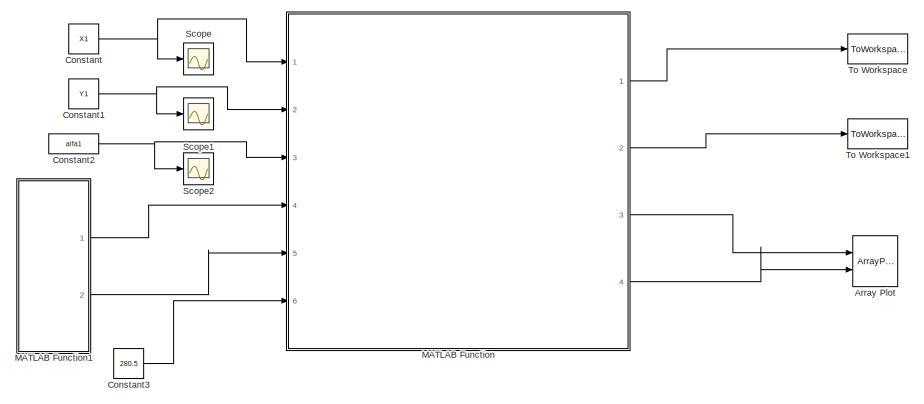
[diagram: root canvas - part 1/2, full width, top band]
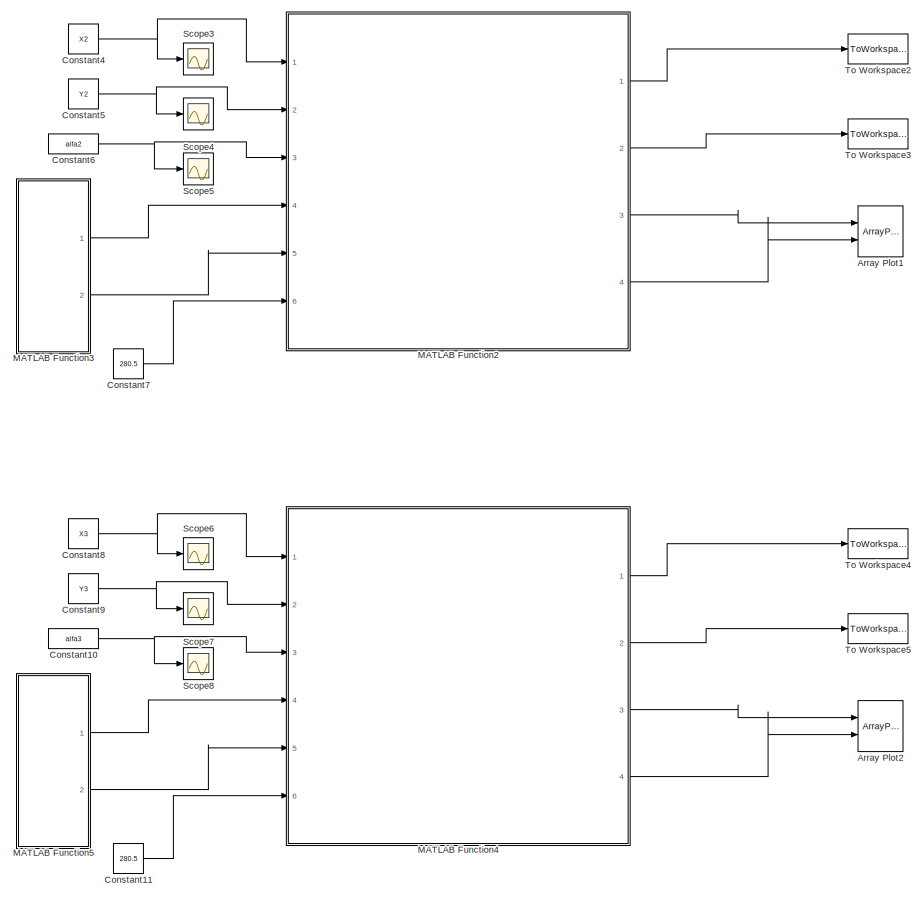
[diagram: root canvas - part 2/2, full width, bottom band]
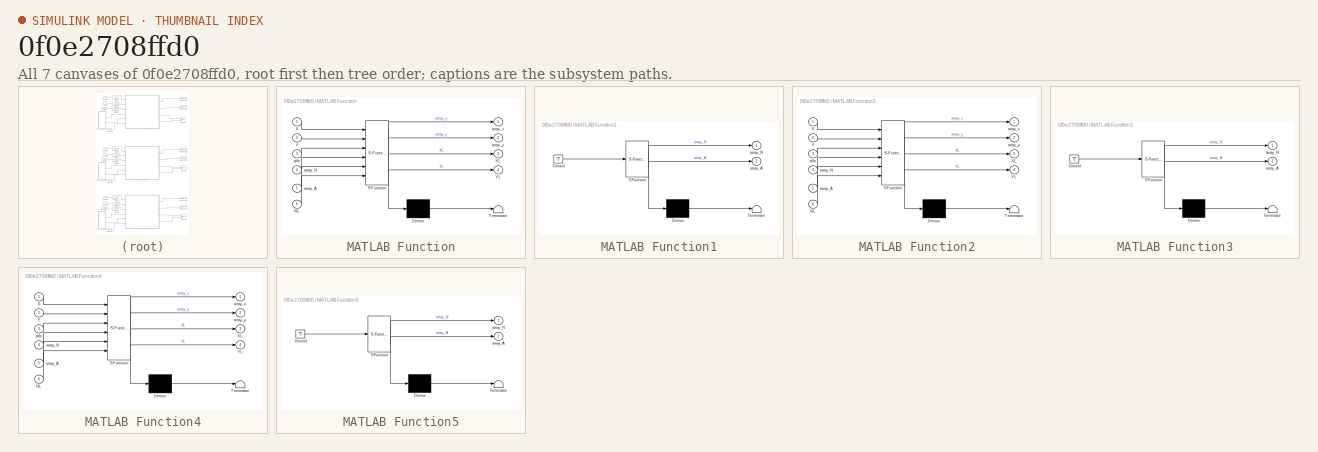
[diagram: thumbnail index - all 7 canvases of the model, root first then tree order]
MODEL slx_0f0e2708ffd0
KIND model
CONFIG AbsTol = auto
CONFIG EnableMultiTasking = off
CONFIG FixedStep = auto
CONFIG MaxStep = auto
CONFIG MinStep = auto
CONFIG RelTol = 1e-3
CONFIG SampleTimeConstraint = Unconstrained
CONFIG SolverName = VariableStepAuto
CONFIG StartTime = 0.0
CONFIG StopTime = 1
BLOCK [ArrayPlot] Array Plot
  DefaultConfigurationName = dsp.scopes.ArrayPlotBlockSpecification
  GraphicalSettings = {"Style":{"BackgroundColor":[0.1568627450980392,0.1568627450980392,0.1568627450980392],"AxesColor":[0,0,0],"LabelsColor":[0.6862745098039216,0.6862745098039216,0.6862745098039216],"LineStyle":["-","-"],"LineColor":[[1,1,0.06666666666666667],[0.07450980392156863,0.6235294117647059,1]],"LineWidth":[1.5,1.5],"Marker":["o","o"],"FontSize":"small"}}  <repeated x3 — deduplicated; at blocks: Array Plot, Array Plot1, Array Plot2>
  NumInputPorts = 2
  Ports = [2]
  ShowLegend = on
  WindowPosition = [1.000000,49.000000,1536.000000,793.000000,]
  YLimits = [1923.5505206074731,2473.1363836381797]
BLOCK [ArrayPlot] Array Plot1
  DefaultConfigurationName = dsp.scopes.ArrayPlotBlockSpecification
  NumInputPorts = 2
  Ports = [2]
  ShowLegend = on
  WindowPosition = [1.000000,49.000000,1536.000000,793.000000,]
  YLimits = [5653.261151340503,7268.478623152074]
BLOCK [ArrayPlot] Array Plot2
  DefaultConfigurationName = dsp.scopes.ArrayPlotBlockSpecification
  NumInputPorts = 2
  Ports = [2]
  ShowLegend = on
  WindowPosition = [1.000000,49.000000,1536.000000,793.000000,]
  YLimits = [5653.261151340503,7268.478623152074]
BLOCK [Constant] Constant
  LockScale = on
  OutDataTypeStr = double
  Value = X1
BLOCK [Constant] Constant1
  LockScale = on
  OutDataTypeStr = double
  Value = Y1
BLOCK [Constant] Constant10
  LockScale = on
  OutDataTypeStr = double
  Value = alfa3
BLOCK [Constant] Constant11
  Value = 280.5
BLOCK [Constant] Constant2
  LockScale = on
  OutDataTypeStr = double
  Value = alfa1
BLOCK [Constant] Constant3
  Value = 280.5
BLOCK [Constant] Constant4
  LockScale = on
  OutDataTypeStr = double
  Value = X2
BLOCK [Constant] Constant5
  LockScale = on
  OutDataTypeStr = double
  Value = Y2
BLOCK [Constant] Constant6
  LockScale = on
  OutDataTypeStr = double
  Value = alfa2
BLOCK [Constant] Constant7
  Value = 280.5
BLOCK [Constant] Constant8
  LockScale = on
  OutDataTypeStr = double
  Value = X3
BLOCK [Constant] Constant9
  LockScale = on
  OutDataTypeStr = double
  Value = Y3
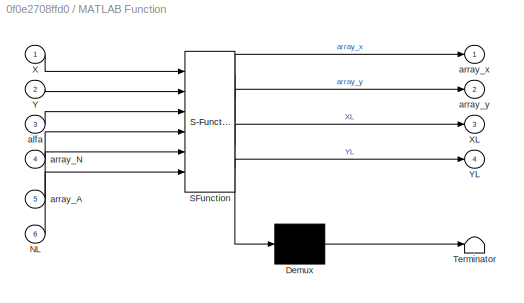
BLOCK [SubSystem] MATLAB Function
  ErrorFcn = Stateflow.Translate.translate
  PermitHierarchicalResolution = ExplicitOnly
  Ports = [6, 4]
  RequestExecContextInheritance = off
  SFBlockType = MATLAB Function
  TreatAsAtomicUnit = on
BLOCK [Demux] MATLAB Function/ Demux 
  Outputs = 1
  Ports = [1, 1]
BLOCK [S-Function] MATLAB Function/ SFunction 
  EnableBusSupport = on
  FunctionName = sf_sfun
  PortCounts = [6 5]
  Ports = [6, 5]
  SFcnIsStateOwnerBlock = off
  SFunctionDeploymentMode = off
  Tag = Stateflow S-Function 2
BLOCK [Terminator] MATLAB Function/ Terminator 
BLOCK [Inport] MATLAB Function/NL
  Port = 6
BLOCK [Inport] MATLAB Function/X
BLOCK [Outport] MATLAB Function/XL
  Port = 3
  VectorParamsAs1DForOutWhenUnconnected = off
BLOCK [Inport] MATLAB Function/Y
  Port = 2
BLOCK [Outport] MATLAB Function/YL
  Port = 4
  VectorParamsAs1DForOutWhenUnconnected = off
BLOCK [Inport] MATLAB Function/alfa
  Port = 3
BLOCK [Inport] MATLAB Function/array_A
  Port = 5
BLOCK [Inport] MATLAB Function/array_N
  Port = 4
BLOCK [Outport] MATLAB Function/array_x
  VectorParamsAs1DForOutWhenUnconnected = off
BLOCK [Outport] MATLAB Function/array_y
  Port = 2
  VectorParamsAs1DForOutWhenUnconnected = off
BLOCK [SubSystem] MATLAB Function1
  ErrorFcn = Stateflow.Translate.translate
  PermitHierarchicalResolution = ExplicitOnly
  Ports = [0, 2]
  RequestExecContextInheritance = off
  SFBlockType = MATLAB Function
  TreatAsAtomicUnit = on
BLOCK [Demux] MATLAB Function1/ Demux 
  Outputs = 1
  Ports = [1, 1]
BLOCK [Ground] MATLAB Function1/ Ground 
BLOCK [S-Function] MATLAB Function1/ SFunction 
  EnableBusSupport = on
  FunctionName = sf_sfun
  PortCounts = [1 3]
  Ports = [1, 3]
  SFcnIsStateOwnerBlock = off
  SFunctionDeploymentMode = off
  Tag = Stateflow S-Function 1
BLOCK [Terminator] MATLAB Function1/ Terminator 
BLOCK [Outport] MATLAB Function1/array_A
  Port = 2
  VectorParamsAs1DForOutWhenUnconnected = off
BLOCK [Outport] MATLAB Function1/array_N
  VectorParamsAs1DForOutWhenUnconnected = off
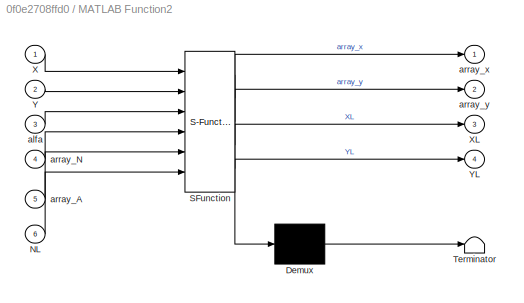
BLOCK [SubSystem] MATLAB Function2
  ErrorFcn = Stateflow.Translate.translate
  PermitHierarchicalResolution = ExplicitOnly
  Ports = [6, 4]
  RequestExecContextInheritance = off
  SFBlockType = MATLAB Function
  TreatAsAtomicUnit = on
BLOCK [Demux] MATLAB Function2/ Demux 
  Outputs = 1
  Ports = [1, 1]
BLOCK [S-Function] MATLAB Function2/ SFunction 
  EnableBusSupport = on
  FunctionName = sf_sfun
  PortCounts = [6 5]
  Ports = [6, 5]
  SFcnIsStateOwnerBlock = off
  SFunctionDeploymentMode = off
  Tag = Stateflow S-Function 3
BLOCK [Terminator] MATLAB Function2/ Terminator 
BLOCK [Inport] MATLAB Function2/NL
  Port = 6
BLOCK [Inport] MATLAB Function2/X
BLOCK [Outport] MATLAB Function2/XL
  Port = 3
  VectorParamsAs1DForOutWhenUnconnected = off
BLOCK [Inport] MATLAB Function2/Y
  Port = 2
BLOCK [Outport] MATLAB Function2/YL
  Port = 4
  VectorParamsAs1DForOutWhenUnconnected = off
BLOCK [Inport] MATLAB Function2/alfa
  Port = 3
BLOCK [Inport] MATLAB Function2/array_A
  Port = 5
BLOCK [Inport] MATLAB Function2/array_N
  Port = 4
BLOCK [Outport] MATLAB Function2/array_x
  VectorParamsAs1DForOutWhenUnconnected = off
BLOCK [Outport] MATLAB Function2/array_y
  Port = 2
  VectorParamsAs1DForOutWhenUnconnected = off
BLOCK [SubSystem] MATLAB Function3
  ErrorFcn = Stateflow.Translate.translate
  PermitHierarchicalResolution = ExplicitOnly
  Ports = [0, 2]
  RequestExecContextInheritance = off
  SFBlockType = MATLAB Function
  TreatAsAtomicUnit = on
BLOCK [Demux] MATLAB Function3/ Demux 
  Outputs = 1
  Ports = [1, 1]
BLOCK [Ground] MATLAB Function3/ Ground 
BLOCK [S-Function] MATLAB Function3/ SFunction 
  EnableBusSupport = on
  FunctionName = sf_sfun
  PortCounts = [1 3]
  Ports = [1, 3]
  SFcnIsStateOwnerBlock = off
  SFunctionDeploymentMode = off
  Tag = Stateflow S-Function 4
BLOCK [Terminator] MATLAB Function3/ Terminator 
BLOCK [Outport] MATLAB Function3/array_A
  Port = 2
  VectorParamsAs1DForOutWhenUnconnected = off
BLOCK [Outport] MATLAB Function3/array_N
  VectorParamsAs1DForOutWhenUnconnected = off
BLOCK [SubSystem] MATLAB Function4
  ErrorFcn = Stateflow.Translate.translate
  PermitHierarchicalResolution = ExplicitOnly
  Ports = [6, 4]
  RequestExecContextInheritance = off
  SFBlockType = MATLAB Function
  TreatAsAtomicUnit = on
BLOCK [Demux] MATLAB Function4/ Demux 
  Outputs = 1
  Ports = [1, 1]
BLOCK [S-Function] MATLAB Function4/ SFunction 
  EnableBusSupport = on
  FunctionName = sf_sfun
  PortCounts = [6 5]
  Ports = [6, 5]
  SFcnIsStateOwnerBlock = off
  SFunctionDeploymentMode = off
  Tag = Stateflow S-Function 5
BLOCK [Terminator] MATLAB Function4/ Terminator 
BLOCK [Inport] MATLAB Function4/NL
  Port = 6
BLOCK [Inport] MATLAB Function4/X
BLOCK [Outport] MATLAB Function4/XL
  Port = 3
  VectorParamsAs1DForOutWhenUnconnected = off
BLOCK [Inport] MATLAB Function4/Y
  Port = 2
BLOCK [Outport] MATLAB Function4/YL
  Port = 4
  VectorParamsAs1DForOutWhenUnconnected = off
BLOCK [Inport] MATLAB Function4/alfa
  Port = 3
BLOCK [Inport] MATLAB Function4/array_A
  Port = 5
BLOCK [Inport] MATLAB Function4/array_N
  Port = 4
BLOCK [Outport] MATLAB Function4/array_x
  VectorParamsAs1DForOutWhenUnconnected = off
BLOCK [Outport] MATLAB Function4/array_y
  Port = 2
  VectorParamsAs1DForOutWhenUnconnected = off
BLOCK [SubSystem] MATLAB Function5
  ErrorFcn = Stateflow.Translate.translate
  PermitHierarchicalResolution = ExplicitOnly
  Ports = [0, 2]
  RequestExecContextInheritance = off
  SFBlockType = MATLAB Function
  TreatAsAtomicUnit = on
BLOCK [Demux] MATLAB Function5/ Demux 
  Outputs = 1
  Ports = [1, 1]
BLOCK [Ground] MATLAB Function5/ Ground 
BLOCK [S-Function] MATLAB Function5/ SFunction 
  EnableBusSupport = on
  FunctionName = sf_sfun
  PortCounts = [1 3]
  Ports = [1, 3]
  SFcnIsStateOwnerBlock = off
  SFunctionDeploymentMode = off
  Tag = Stateflow S-Function 6
BLOCK [Terminator] MATLAB Function5/ Terminator 
BLOCK [Outport] MATLAB Function5/array_A
  Port = 2
  VectorParamsAs1DForOutWhenUnconnected = off
BLOCK [Outport] MATLAB Function5/array_N
  VectorParamsAs1DForOutWhenUnconnected = off
BLOCK [Scope] Scope
  Floating = off
  NumInputPorts = 1
  Ports = [1]
  ScopeSpecificationString = Simulink.scopes.TimeScopeBlockCfg('CurrentConfiguration', extmgr.ConfigurationSet(extmgr.Configuration('Core','General UI',true),extmgr.Configuration('Core','Source UI',true),extmgr.Configuration('Sources','WiredSimulink',true),extmgr.Configuration('Visuals','Time Domain',true,'SerializedDisplays',{struct('MinYLimReal','-64.9733','MaxYLimReal','584.75967','YLabelReal','','MinYLimMag','0.00000','Ma...<+5731ch>
BLOCK [Scope] Scope1
  Floating = off
  NumInputPorts = 1
  Ports = [1]
  ScopeSpecificationString = Simulink.scopes.TimeScopeBlockCfg('CurrentConfiguration', extmgr.ConfigurationSet(extmgr.Configuration('Core','General UI',true),extmgr.Configuration('Core','Source UI',true),extmgr.Configuration('Sources','WiredSimulink',true,'DataLoggingVariableName','ScopeData1'),extmgr.Configuration('Visuals','Time Domain',true,'SerializedDisplays',{struct('MinYLimReal','1953.1699','MaxYLimReal','2421.47092','...<+5831ch>
BLOCK [Scope] Scope2
  Floating = off
  NumInputPorts = 1
  Ports = [1]
  ScopeSpecificationString = Simulink.scopes.TimeScopeBlockCfg('CurrentConfiguration', extmgr.ConfigurationSet(extmgr.Configuration('Core','General UI',true),extmgr.Configuration('Core','Source UI',true),extmgr.Configuration('Sources','WiredSimulink',true,'DataLoggingVariableName','ScopeData2'),extmgr.Configuration('Visuals','Time Domain',true,'SerializedDisplays',{struct('MinYLimReal','24.26068','MaxYLimReal','47.30437','YLa...<+5819ch>
BLOCK [Scope] Scope3
  Floating = off
  NumInputPorts = 1
  Ports = [1]
  ScopeSpecificationString = Simulink.scopes.TimeScopeBlockCfg('CurrentConfiguration', extmgr.ConfigurationSet(extmgr.Configuration('Core','General UI',true),extmgr.Configuration('Core','Source UI',true),extmgr.Configuration('Sources','WiredSimulink',true,'DataLoggingVariableName','ScopeData3'),extmgr.Configuration('Visuals','Time Domain',true,'SerializedDisplays',{struct('MinYLimReal','-64.9733','MaxYLimReal','584.75967','YL...<+5770ch>
BLOCK [Scope] Scope4
  Floating = off
  NumInputPorts = 1
  Ports = [1]
  ScopeSpecificationString = Simulink.scopes.TimeScopeBlockCfg('CurrentConfiguration', extmgr.ConfigurationSet(extmgr.Configuration('Core','General UI',true),extmgr.Configuration('Core','Source UI',true),extmgr.Configuration('Sources','WiredSimulink',true,'DataLoggingVariableName','ScopeData4'),extmgr.Configuration('Visuals','Time Domain',true,'SerializedDisplays',{struct('MinYLimReal','1953.1699','MaxYLimReal','2421.47092','...<+5831ch>
BLOCK [Scope] Scope5
  Floating = off
  NumInputPorts = 1
  Ports = [1]
  ScopeSpecificationString = Simulink.scopes.TimeScopeBlockCfg('CurrentConfiguration', extmgr.ConfigurationSet(extmgr.Configuration('Core','General UI',true),extmgr.Configuration('Core','Source UI',true),extmgr.Configuration('Sources','WiredSimulink',true,'DataLoggingVariableName','ScopeData5'),extmgr.Configuration('Visuals','Time Domain',true,'SerializedDisplays',{struct('MinYLimReal','24.26068','MaxYLimReal','47.30437','YLa...<+5819ch>
BLOCK [Scope] Scope6
  Floating = off
  NumInputPorts = 1
  Ports = [1]
  ScopeSpecificationString = Simulink.scopes.TimeScopeBlockCfg('CurrentConfiguration', extmgr.ConfigurationSet(extmgr.Configuration('Core','General UI',true),extmgr.Configuration('Core','Source UI',true),extmgr.Configuration('Sources','WiredSimulink',true,'DataLoggingVariableName','ScopeData1'),extmgr.Configuration('Visuals','Time Domain',true,'SerializedDisplays',{struct('MinYLimReal','-64.9733','MaxYLimReal','584.75967','YL...<+5770ch>
BLOCK [Scope] Scope7
  Floating = off
  NumInputPorts = 1
  Ports = [1]
  ScopeSpecificationString = Simulink.scopes.TimeScopeBlockCfg('CurrentConfiguration', extmgr.ConfigurationSet(extmgr.Configuration('Core','General UI',true),extmgr.Configuration('Core','Source UI',true),extmgr.Configuration('Sources','WiredSimulink',true,'DataLoggingVariableName','ScopeData2'),extmgr.Configuration('Visuals','Time Domain',true,'SerializedDisplays',{struct('MinYLimReal','1953.1699','MaxYLimReal','2421.47092','...<+5831ch>
BLOCK [Scope] Scope8
  Floating = off
  NumInputPorts = 1
  Ports = [1]
  ScopeSpecificationString = Simulink.scopes.TimeScopeBlockCfg('CurrentConfiguration', extmgr.ConfigurationSet(extmgr.Configuration('Core','General UI',true),extmgr.Configuration('Core','Source UI',true),extmgr.Configuration('Sources','WiredSimulink',true,'DataLoggingVariableName','ScopeData3'),extmgr.Configuration('Visuals','Time Domain',true,'SerializedDisplays',{struct('MinYLimReal','24.26068','MaxYLimReal','47.30437','YLa...<+5819ch>
BLOCK [ToWorkspace] To Workspace
  Decimation = 2
  FixptAsFi = on
  MaxDataPoints = inf
  Ports = [1]
  SampleTime = 1
  VariableName = X_Robot
BLOCK [ToWorkspace] To Workspace1
  Decimation = 2
  FixptAsFi = on
  MaxDataPoints = inf
  Ports = [1]
  SampleTime = 1
  VariableName = Y_Robot
BLOCK [ToWorkspace] To Workspace2
  Decimation = 2
  FixptAsFi = on
  MaxDataPoints = inf
  Ports = [1]
  SampleTime = 1
  VariableName = X_Robot1
BLOCK [ToWorkspace] To Workspace3
  Decimation = 2
  FixptAsFi = on
  MaxDataPoints = inf
  Ports = [1]
  SampleTime = 1
  VariableName = Y_Robot1
BLOCK [ToWorkspace] To Workspace4
  Decimation = 2
  FixptAsFi = on
  MaxDataPoints = inf
  Ports = [1]
  SampleTime = 1
  VariableName = X_Robot2
BLOCK [ToWorkspace] To Workspace5
  Decimation = 2
  FixptAsFi = on
  MaxDataPoints = inf
  Ports = [1]
  SampleTime = 1
  VariableName = Y_Robot2
NET Constant10:1 -> MATLAB Function4:3, Scope8:1
LINE Constant11:1 -> MATLAB Function4:6
NET Constant1:1 -> MATLAB Function:2, Scope1:1
NET Constant2:1 -> MATLAB Function:3, Scope2:1
LINE Constant3:1 -> MATLAB Function:6
NET Constant4:1 -> MATLAB Function2:1, Scope3:1
NET Constant5:1 -> MATLAB Function2:2, Scope4:1
NET Constant6:1 -> MATLAB Function2:3, Scope5:1
LINE Constant7:1 -> MATLAB Function2:6
NET Constant8:1 -> MATLAB Function4:1, Scope6:1
NET Constant9:1 -> MATLAB Function4:2, Scope7:1
NET Constant:1 -> MATLAB Function:1, Scope:1
LINE MATLAB Function1:1 -> MATLAB Function:4
LINE MATLAB Function1:2 -> MATLAB Function:5
LINE MATLAB Function2:1 -> To Workspace2:1
LINE MATLAB Function2:2 -> To Workspace3:1
LINE MATLAB Function2:3 -> Array Plot1:1
LINE MATLAB Function2:4 -> Array Plot1:2
LINE MATLAB Function3:1 -> MATLAB Function2:4
LINE MATLAB Function3:2 -> MATLAB Function2:5
LINE MATLAB Function4:1 -> To Workspace4:1
LINE MATLAB Function4:2 -> To Workspace5:1
LINE MATLAB Function4:3 -> Array Plot2:1
LINE MATLAB Function4:4 -> Array Plot2:2
LINE MATLAB Function5:1 -> MATLAB Function4:4
LINE MATLAB Function5:2 -> MATLAB Function4:5
LINE MATLAB Function:1 -> To Workspace:1
LINE MATLAB Function:2 -> To Workspace1:1
LINE MATLAB Function:3 -> Array Plot:1
LINE MATLAB Function:4 -> Array Plot:2
note: NET lines group one-source signal fan-out (src -> all destinations, sorted); 1:1 wires keep LINE
CHART MATLAB Function2 states=1 transitions=1
  STATE_LABEL 'eML_blk_kernel()'
  STATE_LABEL 'SCRIPT:\nfunction [array_x ,array_y,XL,YL ] = fcn(X,Y,alfa,array_N,array_A,NL)\na=size(X);\nXL=zeros(a(1),1);\nYL=zeros(a(1),1);\narray_x=zeros(a(1),15);\narray_y=zeros(a(1),15);\nfor n=1:a(1)\n\n    for i=1:15 \n    array_x(n,i)= X(n,1) + array_N(i)*cosd(alfa(n,1) -array_A(i));\n    array_y(n,i)= Y(n,1) + array_N(i)*sind(alfa(n,1) -array_A(i));    \n\n    end\nXL(n,1)= X(n,1) + NL*cosd(alfa(n,1));\nYL(n,1)= Y(n...<+32ch>'
CHART MATLAB Function3 states=1 transitions=1
  STATE_LABEL 'eML_blk_kernel()'
  STATE_LABEL 'SCRIPT:\nfunction [array_N,array_A]=fcn() \n\narray_N=[367.6,735.29,747.2,390.89,420.92,330.25,648.42,648.42,330.25,420.92,390.89,747.2,735.29,367.6,367.6];\narray_A=[9.08,4.52,11.19,21.77,30.41,66.35,152.09,-152.09,-66.35,-30.41,-21.77,-11.19,-4.52,-9.08,9.08];'  <repeated x3 — deduplicated; at blocks: MATLAB Function3, MATLAB Function5, MATLAB Function1>
CHART MATLAB Function4 states=1 transitions=1
  STATE_LABEL 'eML_blk_kernel()'
  STATE_LABEL 'SCRIPT:\nfunction [array_x ,array_y,XL,YL ] = fcn(X,Y,alfa,array_N,array_A,NL)\na=size(X);\nXL=zeros(a(1),1);\nYL=zeros(a(1),1);\narray_x=zeros(a(1),15);\narray_y=zeros(a(1),15);\nfor n=1:a(1)\n\n    for i=1:15 \n    array_x(n,i)= X(n,1) + array_N(i)*cosd(alfa(n,1) -array_A(i));\n    array_y(n,i)= Y(n,1) + array_N(i)*sind(alfa(n,1) -array_A(i));    \n\n    end\nXL(n,1)= X(n,1) + NL*cosd(alfa(n,1));\nYL(n,1)= Y(n...<+34ch>'
CHART MATLAB Function5 states=1 transitions=1
  STATE_LABEL 'eML_blk_kernel()'
CHART MATLAB Function1 states=1 transitions=1
  STATE_LABEL 'eML_blk_kernel()'
CHART MATLAB Function states=1 transitions=1
  STATE_LABEL 'eML_blk_kernel()'
  STATE_LABEL 'SCRIPT:\nfunction [array_x ,array_y,XL,YL ] = fcn(X,Y,alfa,array_N,array_A,NL)\na=size(X);\nXL=zeros(a(1),1);\nYL=zeros(a(1),1);\narray_x=zeros(a(1),15);\narray_y=zeros(a(1),15);\nfor n=1:a(1)\n\n    for i=1:15 \n    array_x(n,i)= X(n,1) + array_N(i)*cosd(alfa(n,1) -array_A(i));\n    array_y(n,i)= Y(n,1) + array_N(i)*sind(alfa(n,1) -array_A(i));    \n\n    end\nXL(n,1)= X(n,1) + NL*cosd(alfa(n,1));\nYL(n,1)= Y(n...<+33ch>'
CHART  states=0 transitions=0
CHART  states=0 transitions=0
CHART  states=0 transitions=0
CHART  states=0 transitions=0
CHART  states=0 transitions=0
CHART  states=0 transitions=0
